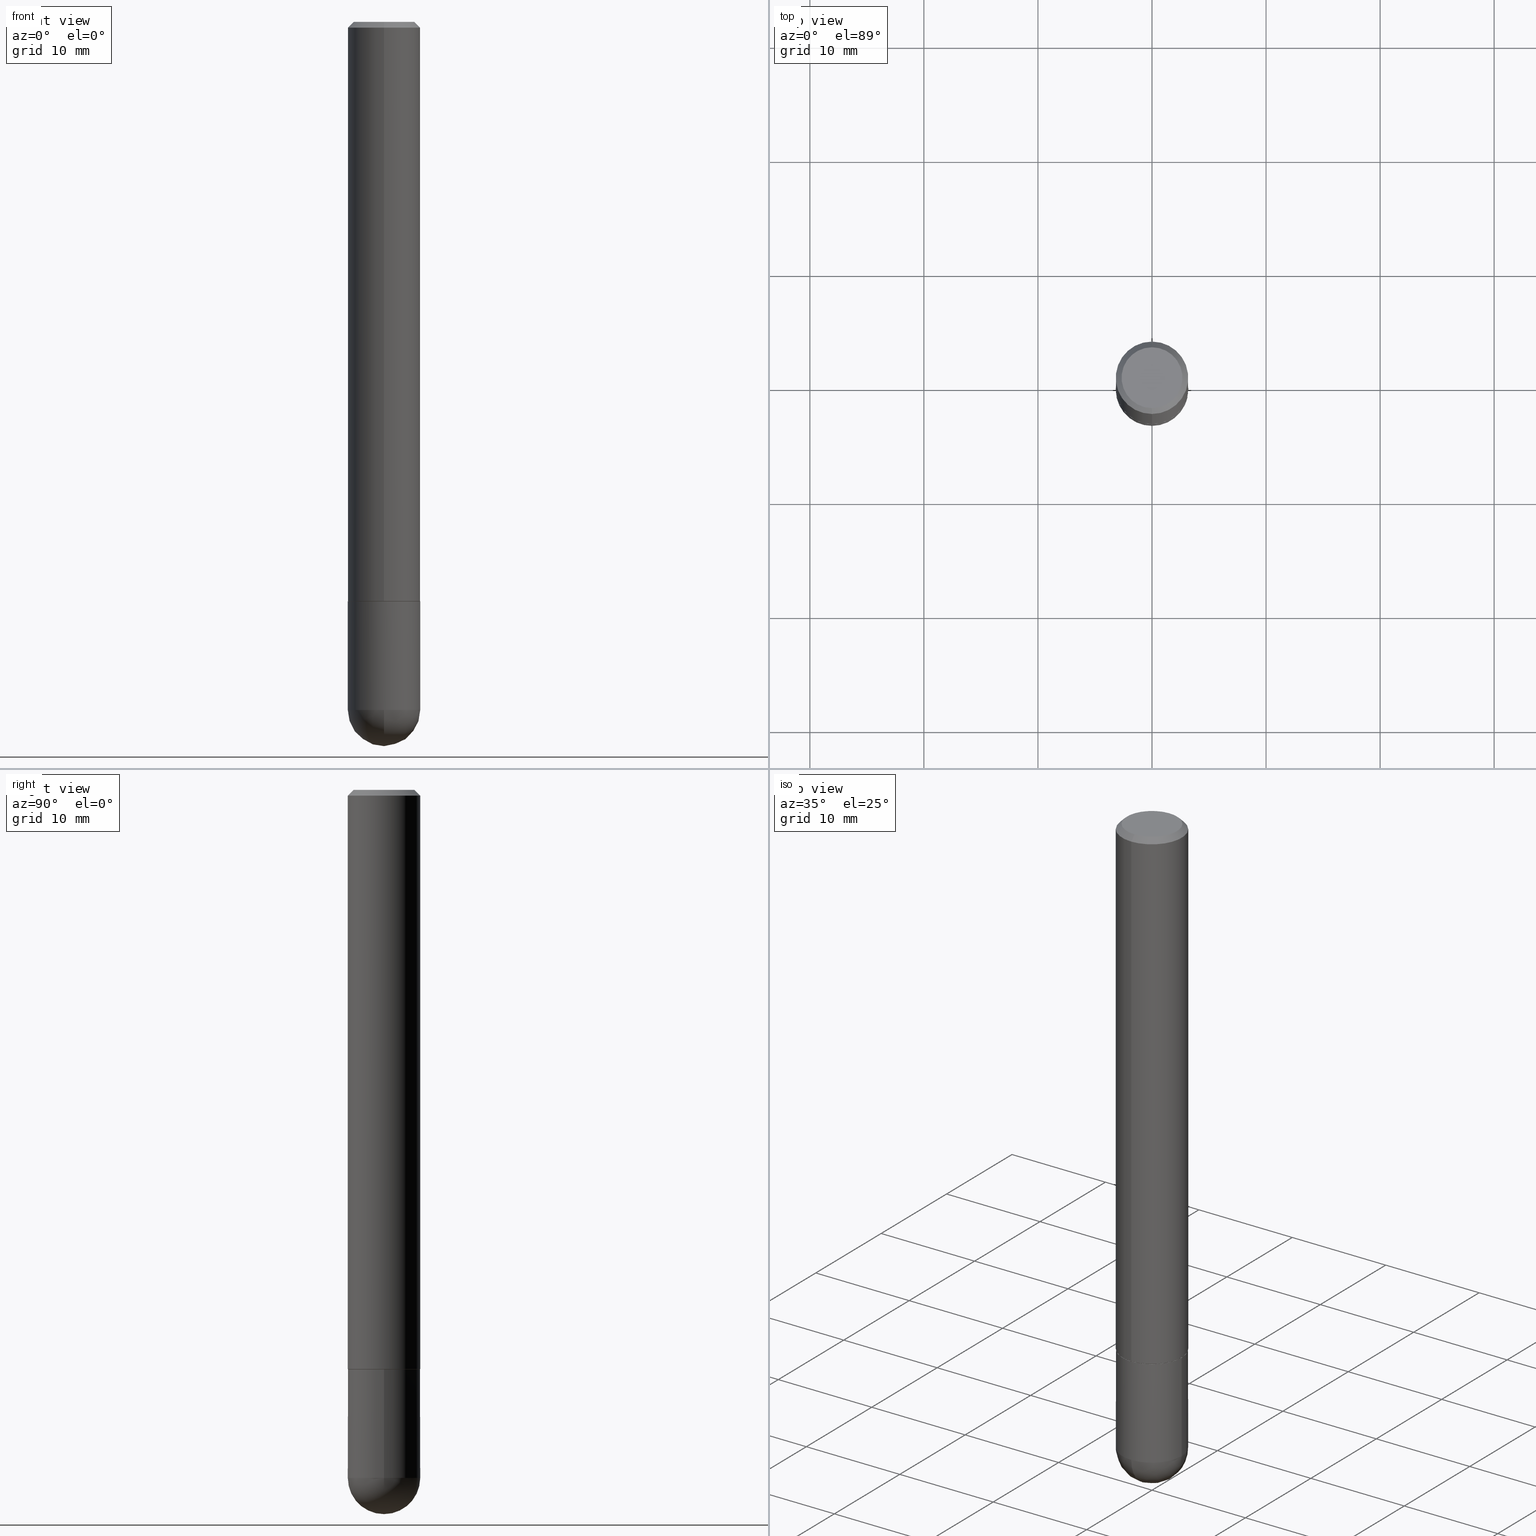
[diagram: canonical four-view strip — front | top / right | iso, engineering-drawing reading convention]
A machine part, canonical four-view strip (front | top / right | iso — engineering-drawing reading convention). The complete STEP part file that produces these views, byte-faithful:
ISO-10303-21;
HEADER;
FILE_DESCRIPTION (( 'STEP AP203' ),
    '1' );
FILE_NAME ('36344.STEP',
    '2024-02-21T18:51:30',
    ( '' ),
    ( '' ),
    'SwSTEP 2.0',
    'SolidWorks 2023',
    '' );
FILE_SCHEMA (( 'CONFIG_CONTROL_DESIGN' ));
ENDSEC;

DATA;
#1 = ORIENTED_EDGE ( 'NONE', *, *, #232, .T. ) ;
#2 = PERSON_AND_ORGANIZATION ( #333, #257 ) ;
#3 = CONICAL_SURFACE ( 'NONE', #265, 0.1250000000000000278, 0.7853981633974469467 ) ;
#4 = EDGE_LOOP ( 'NONE', ( #338, #387, #126, #192 ) ) ;
#5 = ORIENTED_EDGE ( 'NONE', *, *, #272, .T. ) ;
#6 = CARTESIAN_POINT ( 'NONE',  ( 4.891806665152773460E-29, -6.974724612781594373E-15, -1.998999999999999666 ) ) ;
#7 = ORIENTED_EDGE ( 'NONE', *, *, #237, .F. ) ;
#8 = ADVANCED_FACE ( 'NONE', ( #401 ), #111, .F. ) ;
#9 = DIRECTION ( 'NONE',  ( -6.982962677686265922E-15, -1.000000000000000000, 3.489106859820707875E-15 ) ) ;
#10 = ORIENTED_EDGE ( 'NONE', *, *, #67, .T. ) ;
#11 = DIRECTION ( 'NONE',  ( -6.982962677686265922E-15, -1.000000000000000000, 3.489106859820707875E-15 ) ) ;
#12 = CIRCLE ( 'NONE', #96, 0.1250000000000000278 ) ;
#13 = AXIS2_PLACEMENT_3D ( 'NONE', #122, #197, #99 ) ;
#14 = FACE_OUTER_BOUND ( 'NONE', #263, .T. ) ;
#15 = EDGE_CURVE ( 'NONE', #322, #319, #78, .T. ) ;
#16 = CARTESIAN_POINT ( 'NONE',  ( 4.894253792048817813E-31, -6.978213719641443063E-17, -0.02000000000000007674 ) ) ;
#17 = ORIENTED_EDGE ( 'NONE', *, *, #316, .T. ) ;
#18 = DIRECTION ( 'NONE',  ( 6.982962677686265922E-15, 1.000000000000000000, -3.483106191921934765E-15 ) ) ;
#19 = COORDINATED_UNIVERSAL_TIME_OFFSET ( 5, 0, .BEHIND. ) ;
#20 = DIRECTION ( 'NONE',  ( -2.447126896024399518E-29, 3.489106859820708269E-15, 1.000000000000000000 ) ) ;
#21 = AXIS2_PLACEMENT_3D ( 'NONE', #240, #370, #179 ) ;
#22 = EDGE_CURVE ( 'NONE', #290, #319, #195, .T. ) ;
#23 = DIRECTION ( 'NONE',  ( 6.982962677686265922E-15, 1.000000000000000000, -4.370956789862814050E-15 ) ) ;
#24 = DIRECTION ( 'NONE',  ( 2.447126896024399238E-29, -3.489106859820708269E-15, -1.000000000000000000 ) ) ;
#25 = PERSON_AND_ORGANIZATION ( #333, #257 ) ;
#26 = LINE ( 'NONE', #270, #138 ) ;
#27 = DIRECTION ( 'NONE',  ( 6.982962677686265922E-15, 1.000000000000000000, -3.489106859820708269E-15 ) ) ;
#28 = APPROVAL ( #114, 'UNSPECIFIED' ) ;
#29 = CIRCLE ( 'NONE', #328, 0.1250000000000000278 ) ;
#30 = DATE_AND_TIME ( #314, #409 ) ;
#31 = ORIENTED_EDGE ( 'NONE', *, *, #15, .F. ) ;
#32 = MANIFOLD_SOLID_BREP ( 'Body-Move/Copy2[1]', #105 ) ;
#33 = EDGE_CURVE ( 'NONE', #38, #330, #91, .T. ) ;
#34 = CARTESIAN_POINT ( 'NONE',  ( -8.728703347107842263E-16, -0.1250000000000001388, 4.361383574775889774E-16 ) ) ;
#35 = EDGE_LOOP ( 'NONE', ( #101, #363, #170, #354 ) ) ;
#36 = ORIENTED_EDGE ( 'NONE', *, *, #58, .F. ) ;
#37 = CARTESIAN_POINT ( 'NONE',  ( 4.890937612370273194E-29, -6.982962677686291165E-15, -2.000000000000000000 ) ) ;
#38 = VERTEX_POINT ( 'NONE', #163 ) ;
#39 = DIRECTION ( 'NONE',  ( -6.982962677686265133E-15, -1.000000000000000000, 4.370956789862812472E-15 ) ) ;
#40 = ORIENTED_EDGE ( 'NONE', *, *, #140, .F. ) ;
#41 = CARTESIAN_POINT ( 'NONE',  ( 8.030407079339233933E-16, 0.1050000000000007178, -1.079447126425301600E-15 ) ) ;
#42 = DIRECTION ( 'NONE',  ( 1.000000000000000000, -6.982962677686269077E-15, 0.000000000000000000 ) ) ;
#43 = CARTESIAN_POINT ( 'NONE',  ( 4.894253792048799036E-29, -6.978213719641415749E-15, -2.000000000000000000 ) ) ;
#44 = AXIS2_PLACEMENT_3D ( 'NONE', #108, #69, #11 ) ;
#45 = AXIS2_PLACEMENT_3D ( 'NONE', #66, #172, #199 ) ;
#46 = DIRECTION ( 'NONE',  ( 0.000000000000000000, 0.000000000000000000, 1.000000000000000000 ) ) ;
#47 = EDGE_LOOP ( 'NONE', ( #233, #397 ) ) ;
#48 = MECHANICAL_CONTEXT ( 'NONE', #323, 'mechanical' ) ;
#49 = DIRECTION ( 'NONE',  ( 4.937700262164540942E-15, 0.7071067811865441310, -0.7071067811865509034 ) ) ;
#50 = CARTESIAN_POINT ( 'NONE',  ( 8.881784197001260212E-16, 0.1250000000000001388, -4.361383574775889774E-16 ) ) ;
#51 = ADVANCED_FACE ( 'NONE', ( #93 ), #128, .F. ) ;
#52 =( NAMED_UNIT ( * ) SI_UNIT ( $, .STERADIAN. ) SOLID_ANGLE_UNIT ( ) );
#53 = VECTOR ( 'NONE', #49, 39.37007874015748143 ) ;
#54 = AXIS2_PLACEMENT_3D ( 'NONE', #271, #81, #349 ) ;
#55 = DIRECTION ( 'NONE',  ( -6.982962677686265922E-15, -1.000000000000000000, 4.406206441393971762E-15 ) ) ;
#56 = CARTESIAN_POINT ( 'NONE',  ( -0.1250000000000000278, 8.881784197001254296E-16, -6.148668862818634329E-30 ) ) ;
#57 = LINE ( 'NONE', #56, #334 ) ;
#58 = EDGE_CURVE ( 'NONE', #235, #322, #280, .T. ) ;
#59 = AXIS2_PLACEMENT_3D ( 'NONE', #357, #352, #166 ) ;
#60 = APPROVAL ( #187, 'UNSPECIFIED' ) ;
#61 = VERTEX_POINT ( 'NONE', #222 ) ;
#62 = DESIGN_CONTEXT ( 'detailed design', #398, 'design' ) ;
#63 = LOCAL_TIME ( 13, 51, 30.00000000000000000, #412 ) ;
#64 = CONICAL_SURFACE ( 'NONE', #300, 0.1240000000000000269, 0.7853981633973801113 ) ;
#65 = EDGE_LOOP ( 'NONE', ( #36, #360, #318, #31 ) ) ;
#66 = CARTESIAN_POINT ( 'NONE',  ( 1.745023935735698202E-44, -2.488050372303230009E-30, -7.130909061441245634E-16 ) ) ;
#67 = EDGE_CURVE ( 'NONE', #38, #290, #220, .T. ) ;
#68 = ORIENTED_EDGE ( 'NONE', *, *, #336, .T. ) ;
#69 = DIRECTION ( 'NONE',  ( -2.447126896024399518E-29, 3.489106859820708269E-15, 1.000000000000000000 ) ) ;
#70 = VERTEX_POINT ( 'NONE', #109 ) ;
#71 = CARTESIAN_POINT ( 'NONE',  ( 0.000000000000000000, 0.000000000000000000, 0.000000000000000000 ) ) ;
#72 = EDGE_LOOP ( 'NONE', ( #7, #325, #327, #353, #94 ) ) ;
#73 = CIRCLE ( 'NONE', #275, 0.1250000000000001943 ) ;
#74 = DIRECTION ( 'NONE',  ( -1.000000000000000000, 6.982962677686265922E-15, -4.883557194083112340E-29 ) ) ;
#75 = CARTESIAN_POINT ( 'NONE',  ( 0.000000000000000000, 0.000000000000000000, 0.000000000000000000 ) ) ;
#76 = APPROVAL_PERSON_ORGANIZATION ( #404, #60, #247 ) ;
#77 = DIRECTION ( 'NONE',  ( -2.447126896024399518E-29, 3.489106859820708269E-15, 1.000000000000000000 ) ) ;
#78 = LINE ( 'NONE', #211, #53 ) ;
#79 = CARTESIAN_POINT ( 'NONE',  ( 4.894253792048799036E-29, -6.978213719641415749E-15, -2.000000000000000000 ) ) ;
#80 = DIRECTION ( 'NONE',  ( -2.445468806185136597E-29, 3.491481338843145583E-15, 1.000000000000000000 ) ) ;
#81 = DIRECTION ( 'NONE',  ( 1.000000000000000000, -6.982962677686265922E-15, 4.883557194083112340E-29 ) ) ;
#82 = AXIS2_PLACEMENT_3D ( 'NONE', #236, #332, #42 ) ;
#83 = VERTEX_POINT ( 'NONE', #89 ) ;
#84 = VECTOR ( 'NONE', #243, 39.37007874015748143 ) ;
#85 = VECTOR ( 'NONE', #262, 39.37007874015748143 ) ;
#86 = CARTESIAN_POINT ( 'NONE',  ( 5.807988414689698296E-29, -8.292268179752468540E-15, -2.374999999999999556 ) ) ;
#87 = ADVANCED_FACE ( 'NONE', ( #241 ), #3, .T. ) ;
#88 = PERSON_AND_ORGANIZATION_ROLE ( 'creator' ) ;
#89 = CARTESIAN_POINT ( 'NONE',  ( 8.846257060213748209E-16, 0.1239999999999930463, -2.000000000000000444 ) ) ;
#90 = APPROVAL_DATE_TIME ( #384, #28 ) ;
#91 = CIRCLE ( 'NONE', #13, 0.1250000000000002498 ) ;
#92 = COORDINATED_UNIVERSAL_TIME_OFFSET ( 5, 0, .BEHIND. ) ;
#93 = FACE_OUTER_BOUND ( 'NONE', #204, .T. ) ;
#94 = ORIENTED_EDGE ( 'NONE', *, *, #331, .F. ) ;
#95 = ORIENTED_EDGE ( 'NONE', *, *, #316, .F. ) ;
#96 = AXIS2_PLACEMENT_3D ( 'NONE', #16, #77, #376 ) ;
#97 = CC_DESIGN_PERSON_AND_ORGANIZATION_ASSIGNMENT ( #150, #178, ( #136 ) ) ;
#98 = CIRCLE ( 'NONE', #153, 0.1240000000000000269 ) ;
#99 = DIRECTION ( 'NONE',  ( -6.982962677686265133E-15, -1.000000000000000000, 4.370956789862812472E-15 ) ) ;
#100 = LINE ( 'NONE', #238, #85 ) ;
#101 = ORIENTED_EDGE ( 'NONE', *, *, #33, .T. ) ;
#102 = FACE_OUTER_BOUND ( 'NONE', #217, .T. ) ;
#103 = ORIENTED_EDGE ( 'NONE', *, *, #33, .F. ) ;
#104 = CARTESIAN_POINT ( 'NONE',  ( 4.890937612370273194E-29, -6.982962677686291165E-15, -2.000000000000000000 ) ) ;
#105 = CLOSED_SHELL ( 'NONE', ( #268, #364, #396, #51, #171 ) ) ;
#106 = LOCAL_TIME ( 13, 51, 30.00000000000000000, #176 ) ;
#107 = CC_DESIGN_PERSON_AND_ORGANIZATION_ASSIGNMENT ( #379, #88, ( #210 ) ) ;
#108 = CARTESIAN_POINT ( 'NONE',  ( 0.000000000000000000, 0.000000000000000000, 0.000000000000000000 ) ) ;
#109 = CARTESIAN_POINT ( 'NONE',  ( -8.881784197000695190E-16, -0.1250000000000086320, -2.374999999999999112 ) ) ;
#110 = APPROVAL ( #317, 'UNSPECIFIED' ) ;
#111 = PLANE ( 'NONE',  #21 ) ;
#112 = CONICAL_SURFACE ( 'NONE', #389, 0.1240000000000000269, 0.7853981633973801113 ) ;
#113 = VECTOR ( 'NONE', #212, 39.37007874015748143 ) ;
#114 = APPROVAL_STATUS ( 'not_yet_approved' ) ;
#115 = CARTESIAN_POINT ( 'NONE',  ( 8.810729923425732322E-16, 0.1239999999999930463, -2.000000000000000444 ) ) ;
#116 = CALENDAR_DATE ( 2024, 21, 2 ) ;
#117 = DIRECTION ( 'NONE',  ( -2.447126896024399518E-29, 3.489106859820708269E-15, 1.000000000000000000 ) ) ;
#118 = EDGE_CURVE ( 'NONE', #202, #255, #251, .T. ) ;
#119 = DATE_AND_TIME ( #116, #175 ) ;
#120 = CARTESIAN_POINT ( 'NONE',  ( 0.000000000000000000, 0.000000000000000000, 0.000000000000000000 ) ) ;
#121 = EDGE_CURVE ( 'NONE', #330, #319, #180, .T. ) ;
#122 = CARTESIAN_POINT ( 'NONE',  ( 4.891806665152773460E-29, -6.974724612781594373E-15, -1.998999999999999666 ) ) ;
#123 = PRODUCT_DEFINITION_SHAPE ( 'NONE', 'NONE',  #136 ) ;
#124 = APPROVAL_ROLE ( '' ) ;
#125 = AXIS2_PLACEMENT_3D ( 'NONE', #395, #400, #137 ) ;
#126 = ORIENTED_EDGE ( 'NONE', *, *, #15, .T. ) ;
#127 = EDGE_LOOP ( 'NONE', ( #254, #358, #40, #198 ) ) ;
#128 = PLANE ( 'NONE',  #341 ) ;
#129 = ORIENTED_EDGE ( 'NONE', *, *, #383, .F. ) ;
#130 = CC_DESIGN_DATE_AND_TIME_ASSIGNMENT ( #30, #155, ( #250 ) ) ;
#131 = DIRECTION ( 'NONE',  ( -2.445468806185136597E-29, 3.491481338843145583E-15, 1.000000000000000000 ) ) ;
#132 = AXIS2_PLACEMENT_3D ( 'NONE', #120, #80, #340 ) ;
#133 = VERTEX_POINT ( 'NONE', #373 ) ;
#134 = ORIENTED_EDGE ( 'NONE', *, *, #140, .T. ) ;
#135 = CARTESIAN_POINT ( 'NONE',  ( 5.476868636775814291E-29, -8.766450547892521992E-15, -2.375000000000000000 ) ) ;
#136 = PRODUCT_DEFINITION ( 'UNKNOWN', '', #210, #62 ) ;
#137 = DIRECTION ( 'NONE',  ( 1.000000000000000000, -6.982962677686269077E-15, 0.000000000000000000 ) ) ;
#138 = VECTOR ( 'NONE', #245, 39.37007874015748143 ) ;
#139 = CARTESIAN_POINT ( 'NONE',  ( 5.787897026856327965E-29, -9.195231672753244292E-15, -2.500000000000000444 ) ) ;
#140 = EDGE_CURVE ( 'NONE', #202, #390, #253, .T. ) ;
#141 = DIRECTION ( 'NONE',  ( -2.447126896024399518E-29, 3.489106859820708269E-15, 1.000000000000000000 ) ) ;
#142 = DIRECTION ( 'NONE',  ( -2.447126896024399518E-29, 3.489106859820708269E-15, 1.000000000000000000 ) ) ;
#143 = DIRECTION ( 'NONE',  ( 6.982962677686265922E-15, 1.000000000000000000, -3.483106191921934765E-15 ) ) ;
#144 = CARTESIAN_POINT ( 'NONE',  ( 4.894253792048799036E-29, -6.978213719641415749E-15, -2.000000000000000000 ) ) ;
#145 = DIRECTION ( 'NONE',  ( -2.447126896024399518E-29, 3.489106859820708269E-15, 1.000000000000000000 ) ) ;
#146 = CIRCLE ( 'NONE', #365, 0.1250000000000000278 ) ;
#147 = FACE_OUTER_BOUND ( 'NONE', #157, .T. ) ;
#148 = APPLICATION_PROTOCOL_DEFINITION ( 'international standard', 'config_control_design', 1994, #398 ) ;
#149 = DIRECTION ( 'NONE',  ( -2.445468806185136597E-29, 3.491481338843145583E-15, 1.000000000000000000 ) ) ;
#150 = PERSON_AND_ORGANIZATION ( #333, #257 ) ;
#151 = CARTESIAN_POINT ( 'NONE',  ( 4.894253792048799036E-29, -6.978213719641415749E-15, -2.000000000000000000 ) ) ;
#152 = CIRCLE ( 'NONE', #82, 0.1250000000000000278 ) ;
#153 = AXIS2_PLACEMENT_3D ( 'NONE', #43, #201, #326 ) ;
#154 = DIMENSIONAL_EXPONENTS ( 1.000000000000000000, 0.000000000000000000, 0.000000000000000000, 0.000000000000000000, 0.000000000000000000, 0.000000000000000000, 0.000000000000000000 ) ;
#155 = DATE_TIME_ROLE ( 'classification_date' ) ;
#156 = DIRECTION ( 'NONE',  ( -6.982962677686265922E-15, -1.000000000000000000, 3.483106191921934765E-15 ) ) ;
#157 = EDGE_LOOP ( 'NONE', ( #230, #193, #68, #177 ) ) ;
#158 = AXIS2_PLACEMENT_3D ( 'NONE', #306, #142, #156 ) ;
#159 = AXIS2_PLACEMENT_3D ( 'NONE', #406, #46, #242 ) ;
#160 = DIRECTION ( 'NONE',  ( -2.447126896024399518E-29, 3.489106859820708269E-15, 1.000000000000000000 ) ) ;
#161 = ORIENTED_EDGE ( 'NONE', *, *, #331, .T. ) ;
#162 = CALENDAR_DATE ( 2024, 21, 2 ) ;
#163 = CARTESIAN_POINT ( 'NONE',  ( -8.728703347107360072E-16, -0.1250000000000072164, -1.998999999999999000 ) ) ;
#164 = EDGE_CURVE ( 'NONE', #291, #390, #216, .T. ) ;
#165 = ORIENTED_EDGE ( 'NONE', *, *, #118, .F. ) ;
#166 = DIRECTION ( 'NONE',  ( -6.982962677686266711E-15, -1.000000000000000000, 3.489106859820709058E-15 ) ) ;
#167 = ORIENTED_EDGE ( 'NONE', *, *, #203, .T. ) ;
#168 = MANIFOLD_SOLID_BREP ( 'Body-Move/Copy2[2]', #385 ) ;
#169 = DIRECTION ( 'NONE',  ( 1.000000000000000000, -6.982962677686269077E-15, 0.000000000000000000 ) ) ;
#170 = ORIENTED_EDGE ( 'NONE', *, *, #22, .F. ) ;
#171 = ADVANCED_FACE ( 'NONE', ( #307 ), #312, .T. ) ;
#172 = DIRECTION ( 'NONE',  ( -2.447126896024399518E-29, 3.489106859820708269E-15, 1.000000000000000000 ) ) ;
#173 = DIRECTION ( 'NONE',  ( 1.000000000000000000, -6.982962677686269077E-15, 0.000000000000000000 ) ) ;
#174 = AXIS2_PLACEMENT_3D ( 'NONE', #408, #380, #143 ) ;
#175 = LOCAL_TIME ( 13, 51, 30.00000000000000000, #19 ) ;
#176 = COORDINATED_UNIVERSAL_TIME_OFFSET ( 5, 0, .BEHIND. ) ;
#177 = ORIENTED_EDGE ( 'NONE', *, *, #305, .F. ) ;
#178 = PERSON_AND_ORGANIZATION_ROLE ( 'creator' ) ;
#179 = DIRECTION ( 'NONE',  ( -6.982962677686265922E-15, -1.000000000000000000, 3.489106859820708269E-15 ) ) ;
#180 = LINE ( 'NONE', #50, #249 ) ;
#181 = UNCERTAINTY_MEASURE_WITH_UNIT (LENGTH_MEASURE( 1.000000000000000082E-05 ), #215, 'distance_accuracy_value', 'NONE');
#182 = FACE_OUTER_BOUND ( 'NONE', #127, .T. ) ;
#183 = CARTESIAN_POINT ( 'NONE',  ( 0.1250000000000000278, -8.728703347107836346E-16, 6.095220969744921142E-30 ) ) ;
#184 = AXIS2_PLACEMENT_3D ( 'NONE', #104, #231, #169 ) ;
#185 = SPHERICAL_SURFACE ( 'NONE', #301, 0.1250000000000001943 ) ;
#186 = CARTESIAN_POINT ( 'NONE',  ( 5.476868636775814291E-29, -8.766450547892521992E-15, -2.375000000000000000 ) ) ;
#187 = APPROVAL_STATUS ( 'not_yet_approved' ) ;
#188 = CARTESIAN_POINT ( 'NONE',  ( 0.1250000000000000278, -7.855833012397075293E-15, -2.000000000000000000 ) ) ;
#189 = SECURITY_CLASSIFICATION_LEVEL ( 'unclassified' ) ;
#190 = ADVANCED_FACE ( 'NONE', ( #248 ), #339, .F. ) ;
#191 = PRODUCT ( '36344', '36344', '', ( #48 ) ) ;
#192 = ORIENTED_EDGE ( 'NONE', *, *, #383, .T. ) ;
#193 = ORIENTED_EDGE ( 'NONE', *, *, #244, .T. ) ;
#194 = CC_DESIGN_SECURITY_CLASSIFICATION ( #250, ( #210 ) ) ;
#195 = CIRCLE ( 'NONE', #158, 0.1250000000000000278 ) ;
#196 = ADVANCED_FACE ( 'NONE', ( #147 ), #64, .T. ) ;
#197 = DIRECTION ( 'NONE',  ( -2.447126896024399518E-29, 3.489106859820708269E-15, 1.000000000000000000 ) ) ;
#198 = ORIENTED_EDGE ( 'NONE', *, *, #374, .F. ) ;
#199 = DIRECTION ( 'NONE',  ( -6.982962677686266711E-15, -1.000000000000000000, 3.489106859820709058E-15 ) ) ;
#200 = VERTEX_POINT ( 'NONE', #274 ) ;
#201 = DIRECTION ( 'NONE',  ( -2.447126896024399518E-29, 3.489106859820708269E-15, 1.000000000000000000 ) ) ;
#202 = VERTEX_POINT ( 'NONE', #402 ) ;
#203 = EDGE_CURVE ( 'NONE', #83, #330, #218, .T. ) ;
#204 = EDGE_LOOP ( 'NONE', ( #5, #161 ) ) ;
#205 = DIRECTION ( 'NONE',  ( 6.982962677686265922E-15, 1.000000000000000000, -4.370956789862814050E-15 ) ) ;
#206 = DIRECTION ( 'NONE',  ( -2.445468806185136597E-29, 3.491481338843145583E-15, 1.000000000000000000 ) ) ;
#207 = LOCAL_TIME ( 13, 51, 30.00000000000000000, #92 ) ;
#208 = PERSON_AND_ORGANIZATION ( #333, #257 ) ;
#209 = CIRCLE ( 'NONE', #125, 0.1250000000000000278 ) ;
#210 = PRODUCT_DEFINITION_FORMATION_WITH_SPECIFIED_SOURCE ( 'ANY', '', #191, .NOT_KNOWN. ) ;
#211 = CARTESIAN_POINT ( 'NONE',  ( 8.728703347107839305E-16, 0.1249999999999999584, -0.02000000000000051389 ) ) ;
#212 = DIRECTION ( 'NONE',  ( -2.445468806185136877E-29, 3.491481338843145188E-15, 1.000000000000000000 ) ) ;
#213 = DIRECTION ( 'NONE',  ( -6.982962677686265922E-15, -1.000000000000000000, 4.406206441393971762E-15 ) ) ;
#214 = CC_DESIGN_PERSON_AND_ORGANIZATION_ASSIGNMENT ( #25, #276, ( #191 ) ) ;
#215 =( CONVERSION_BASED_UNIT ( 'INCH', #337 ) LENGTH_UNIT ( ) NAMED_UNIT ( #154 ) );
#216 = CIRCLE ( 'NONE', #54, 0.1250000000000001943 ) ;
#217 = EDGE_LOOP ( 'NONE', ( #394, #1, #285, #95 ) ) ;
#218 = LINE ( 'NONE', #115, #84 ) ;
#219 = DIRECTION ( 'NONE',  ( 2.447126896024399518E-29, -3.489106859820708269E-15, -1.000000000000000000 ) ) ;
#220 = LINE ( 'NONE', #34, #399 ) ;
#221 = FACE_OUTER_BOUND ( 'NONE', #256, .T. ) ;
#222 = CARTESIAN_POINT ( 'NONE',  ( -0.1250000000000000278, -6.749437009019255015E-15, -2.000000000000000000 ) ) ;
#223 = CALENDAR_DATE ( 2024, 21, 2 ) ;
#224 = DIRECTION ( 'NONE',  ( -1.000000000000000000, 6.982962677686265922E-15, -4.876176775795935793E-29 ) ) ;
#225 = EDGE_LOOP ( 'NONE', ( #226, #167, #103, #261 ) ) ;
#226 = ORIENTED_EDGE ( 'NONE', *, *, #287, .T. ) ;
#227 = AXIS2_PLACEMENT_3D ( 'NONE', #75, #206, #296 ) ;
#228 = CC_DESIGN_APPROVAL ( #60, ( #136 ) ) ;
#229 = DIRECTION ( 'NONE',  ( 2.438088387897960049E-29, -3.491481338843145188E-15, -1.000000000000000000 ) ) ;
#230 = ORIENTED_EDGE ( 'NONE', *, *, #203, .F. ) ;
#231 = DIRECTION ( 'NONE',  ( -2.445468806185136597E-29, 3.491481338843145583E-15, 1.000000000000000000 ) ) ;
#232 = EDGE_CURVE ( 'NONE', #291, #70, #73, .T. ) ;
#233 = ORIENTED_EDGE ( 'NONE', *, *, #287, .F. ) ;
#234 = CYLINDRICAL_SURFACE ( 'NONE', #227, 0.1250000000000000278 ) ;
#235 = VERTEX_POINT ( 'NONE', #347 ) ;
#236 = CARTESIAN_POINT ( 'NONE',  ( 5.807988414689698296E-29, -8.292268179752468540E-15, -2.374999999999999556 ) ) ;
#237 = EDGE_CURVE ( 'NONE', #200, #61, #57, .T. ) ;
#238 = CARTESIAN_POINT ( 'NONE',  ( -8.658873720330482180E-16, -0.1240000000000070074, -1.999999999999999334 ) ) ;
#239 = CALENDAR_DATE ( 2024, 21, 2 ) ;
#240 = CARTESIAN_POINT ( 'NONE',  ( 4.894253792048799036E-29, -6.978213719641415749E-15, -2.000000000000000000 ) ) ;
#241 = FACE_OUTER_BOUND ( 'NONE', #4, .T. ) ;
#242 = DIRECTION ( 'NONE',  ( 1.000000000000000000, 0.000000000000000000, 0.000000000000000000 ) ) ;
#243 = DIRECTION ( 'NONE',  ( 5.024295867787719235E-15, 0.7071067811865017205, 0.7071067811865933139 ) ) ;
#244 = EDGE_CURVE ( 'NONE', #83, #133, #288, .T. ) ;
#245 = DIRECTION ( 'NONE',  ( -4.851104656540957175E-15, -0.7071067811865490160, -0.7071067811865460184 ) ) ;
#246 = CARTESIAN_POINT ( 'NONE',  ( 4.894253792048817813E-31, -6.978213719641443063E-17, -0.02000000000000007674 ) ) ;
#247 = APPROVAL_ROLE ( '' ) ;
#248 = FACE_OUTER_BOUND ( 'NONE', #386, .T. ) ;
#249 = VECTOR ( 'NONE', #20, 39.37007874015748143 ) ;
#250 = SECURITY_CLASSIFICATION ( '', '', #189 ) ;
#251 = LINE ( 'NONE', #183, #113 ) ;
#252 = ORIENTED_EDGE ( 'NONE', *, *, #121, .F. ) ;
#253 = CIRCLE ( 'NONE', #350, 0.1250000000000000278 ) ;
#254 = ORIENTED_EDGE ( 'NONE', *, *, #232, .F. ) ;
#255 = VERTEX_POINT ( 'NONE', #188 ) ;
#256 = EDGE_LOOP ( 'NONE', ( #17, #293, #303, #165, #134 ) ) ;
#257 = ORGANIZATION ( 'UNSPECIFIED', 'UNSPECIFIED', '' ) ;
#258 = CIRCLE ( 'NONE', #184, 0.1250000000000000278 ) ;
#259 = ADVANCED_FACE ( 'NONE', ( #279 ), #368, .T. ) ;
#260 = CARTESIAN_POINT ( 'NONE',  ( 5.807988414689698296E-29, -8.292268179752468540E-15, -2.374999999999999556 ) ) ;
#261 = ORIENTED_EDGE ( 'NONE', *, *, #336, .F. ) ;
#262 = DIRECTION ( 'NONE',  ( -4.937700262164211199E-15, -0.7071067811864968355, 0.7071067811865981989 ) ) ;
#263 = EDGE_LOOP ( 'NONE', ( #252, #281, #10, #129 ) ) ;
#264 = APPROVAL_DATE_TIME ( #361, #110 ) ;
#265 = AXIS2_PLACEMENT_3D ( 'NONE', #246, #219, #18 ) ;
#266 = FACE_OUTER_BOUND ( 'NONE', #35, .T. ) ;
#267 = CIRCLE ( 'NONE', #45, 0.1050000000000007178 ) ;
#268 = ADVANCED_FACE ( 'NONE', ( #221 ), #234, .T. ) ;
#269 = DIRECTION ( 'NONE',  ( -2.447126896024399518E-29, 3.489106859820708269E-15, 1.000000000000000000 ) ) ;
#270 = CARTESIAN_POINT ( 'NONE',  ( -8.575622497214411495E-16, -0.1250000000000001110, -0.01999999999999964306 ) ) ;
#271 = CARTESIAN_POINT ( 'NONE',  ( 5.476868636775814291E-29, -8.766450547892521992E-15, -2.375000000000000000 ) ) ;
#272 = EDGE_CURVE ( 'NONE', #255, #61, #29, .T. ) ;
#273 = CARTESIAN_POINT ( 'NONE',  ( 5.476868636775814291E-29, -8.766450547892521992E-15, -2.375000000000000000 ) ) ;
#274 = CARTESIAN_POINT ( 'NONE',  ( -0.1250000000000000278, -6.749437009019255804E-15, -2.374999999999999556 ) ) ;
#275 = AXIS2_PLACEMENT_3D ( 'NONE', #186, #310, #277 ) ;
#276 = PERSON_AND_ORGANIZATION_ROLE ( 'design_owner' ) ;
#277 = DIRECTION ( 'NONE',  ( -7.105427357601001859E-15, -1.000000000000000000, 0.000000000000000000 ) ) ;
#278 =( NAMED_UNIT ( * ) PLANE_ANGLE_UNIT ( ) SI_UNIT ( $, .RADIAN. ) );
#279 = FACE_OUTER_BOUND ( 'NONE', #65, .T. ) ;
#280 = CIRCLE ( 'NONE', #59, 0.1050000000000007178 ) ;
#281 = ORIENTED_EDGE ( 'NONE', *, *, #305, .T. ) ;
#282 = CC_DESIGN_APPROVAL ( #110, ( #250 ) ) ;
#283 = ADVANCED_FACE ( 'NONE', ( #14 ), #359, .T. ) ;
#284 = PERSON_AND_ORGANIZATION_ROLE ( 'design_supplier' ) ;
#285 = ORIENTED_EDGE ( 'NONE', *, *, #313, .F. ) ;
#286 = PERSON_AND_ORGANIZATION_ROLE ( 'classification_officer' ) ;
#287 = EDGE_CURVE ( 'NONE', #133, #83, #98, .T. ) ;
#288 = CIRCLE ( 'NONE', #320, 0.1240000000000000269 ) ;
#289 = AXIS2_PLACEMENT_3D ( 'NONE', #71, #393, #9 ) ;
#290 = VERTEX_POINT ( 'NONE', #292 ) ;
#291 = VERTEX_POINT ( 'NONE', #139 ) ;
#292 = CARTESIAN_POINT ( 'NONE',  ( -8.575622497214411495E-16, -0.1250000000000001110, -0.01999999999999964306 ) ) ;
#293 = ORIENTED_EDGE ( 'NONE', *, *, #237, .T. ) ;
#294 = CARTESIAN_POINT ( 'NONE',  ( 8.881784197001510675E-16, 0.1249999999999932693, -1.999000000000000110 ) ) ;
#295 = ORIENTED_EDGE ( 'NONE', *, *, #345, .T. ) ;
#296 = DIRECTION ( 'NONE',  ( 1.000000000000000000, -6.982962677686267499E-15, 4.876176775795935793E-29 ) ) ;
#297 = DIRECTION ( 'NONE',  ( -2.445468806185136597E-29, 3.491481338843145583E-15, 1.000000000000000000 ) ) ;
#298 = CC_DESIGN_PERSON_AND_ORGANIZATION_ASSIGNMENT ( #348, #284, ( #210 ) ) ;
#299 = PRODUCT_RELATED_PRODUCT_CATEGORY ( 'detail', '', ( #191 ) ) ;
#300 = AXIS2_PLACEMENT_3D ( 'NONE', #79, #145, #55 ) ;
#301 = AXIS2_PLACEMENT_3D ( 'NONE', #273, #335, #23 ) ;
#302 = CARTESIAN_POINT ( 'NONE',  ( 8.728703347108405312E-16, 0.1249999999999916039, -2.375000000000000000 ) ) ;
#303 = ORIENTED_EDGE ( 'NONE', *, *, #272, .F. ) ;
#304 = DIRECTION ( 'NONE',  ( 1.000000000000000000, -6.982962677686269077E-15, 0.000000000000000000 ) ) ;
#305 = EDGE_CURVE ( 'NONE', #330, #38, #308, .T. ) ;
#306 = CARTESIAN_POINT ( 'NONE',  ( 4.894253792048817813E-31, -6.978213719641443063E-17, -0.02000000000000007674 ) ) ;
#307 = FACE_OUTER_BOUND ( 'NONE', #72, .T. ) ;
#308 = CIRCLE ( 'NONE', #391, 0.1250000000000002498 ) ;
#309 = APPLICATION_PROTOCOL_DEFINITION ( 'international standard', 'config_control_design', 1994, #323 ) ;
#310 = DIRECTION ( 'NONE',  ( -1.000000000000000000, 7.105427357601001070E-15, -4.926315508542082329E-29 ) ) ;
#311 = DATE_AND_TIME ( #239, #106 ) ;
#312 = CYLINDRICAL_SURFACE ( 'NONE', #132, 0.1250000000000000278 ) ;
#313 = EDGE_CURVE ( 'NONE', #200, #70, #146, .T. ) ;
#314 = CALENDAR_DATE ( 2024, 21, 2 ) ;
#315 = CARTESIAN_POINT ( 'NONE',  ( 8.728703347108323468E-16, 0.1249999999999930472, -2.000000000000000444 ) ) ;
#316 = EDGE_CURVE ( 'NONE', #390, #200, #209, .T. ) ;
#317 = APPROVAL_STATUS ( 'not_yet_approved' ) ;
#318 = ORIENTED_EDGE ( 'NONE', *, *, #22, .T. ) ;
#319 = VERTEX_POINT ( 'NONE', #362 ) ;
#320 = AXIS2_PLACEMENT_3D ( 'NONE', #151, #117, #377 ) ;
#321 = AXIS2_PLACEMENT_3D ( 'NONE', #135, #74, #205 ) ;
#322 = VERTEX_POINT ( 'NONE', #41 ) ;
#323 = APPLICATION_CONTEXT ( 'configuration controlled 3d designs of mechanical parts and assemblies' ) ;
#324 = CYLINDRICAL_SURFACE ( 'NONE', #289, 0.1250000000000001388 ) ;
#325 = ORIENTED_EDGE ( 'NONE', *, *, #313, .T. ) ;
#326 = DIRECTION ( 'NONE',  ( -6.982962677686265922E-15, -1.000000000000000000, 4.406206441393971762E-15 ) ) ;
#327 = ORIENTED_EDGE ( 'NONE', *, *, #374, .T. ) ;
#328 = AXIS2_PLACEMENT_3D ( 'NONE', #37, #297, #173 ) ;
#329 = DIRECTION ( 'NONE',  ( 1.000000000000000000, -6.982962677686269077E-15, 0.000000000000000000 ) ) ;
#330 = VERTEX_POINT ( 'NONE', #294 ) ;
#331 = EDGE_CURVE ( 'NONE', #61, #255, #258, .T. ) ;
#332 = DIRECTION ( 'NONE',  ( -2.445468806185136597E-29, 3.491481338843145583E-15, 1.000000000000000000 ) ) ;
#333 = PERSON ( 'UNSPECIFIED', 'UNSPECIFIED', 'UNSPECIFIED', ('UNSPECIFIED'), ('UNSPECIFIED'), ('UNSPECIFIED') ) ;
#334 = VECTOR ( 'NONE', #407, 39.37007874015748143 ) ;
#335 = DIRECTION ( 'NONE',  ( -1.000000000000000000, 6.982962677686265922E-15, -4.883557194083112340E-29 ) ) ;
#336 = EDGE_CURVE ( 'NONE', #133, #38, #100, .T. ) ;
#337 = LENGTH_MEASURE_WITH_UNIT ( LENGTH_MEASURE( 0.02539999999999999897 ), #369 );
#338 = ORIENTED_EDGE ( 'NONE', *, *, #410, .F. ) ;
#339 = PLANE ( 'NONE',  #355 ) ;
#340 = DIRECTION ( 'NONE',  ( 1.000000000000000000, -6.982962677686267499E-15, 4.876176775795935793E-29 ) ) ;
#341 = AXIS2_PLACEMENT_3D ( 'NONE', #315, #229, #224 ) ;
#342 = CARTESIAN_POINT ( 'NONE',  ( 7.332110811570630533E-16, 0.1050000000000007178, -7.229016733532391211E-16 ) ) ;
#343 = APPROVAL_PERSON_ORGANIZATION ( #2, #110, #124 ) ;
#344 = SHAPE_DEFINITION_REPRESENTATION ( #123, #403 ) ;
#345 = EDGE_CURVE ( 'NONE', #322, #235, #267, .T. ) ;
#346 = APPROVAL_DATE_TIME ( #311, #60 ) ;
#347 = CARTESIAN_POINT ( 'NONE',  ( -7.889572697437284805E-16, -0.1050000000000007178, -3.467346858629476748E-16 ) ) ;
#348 = PERSON_AND_ORGANIZATION ( #333, #257 ) ;
#349 = DIRECTION ( 'NONE',  ( 6.982962677686266711E-15, 1.000000000000000000, 0.000000000000000000 ) ) ;
#350 = AXIS2_PLACEMENT_3D ( 'NONE', #86, #149, #304 ) ;
#351 = ADVANCED_FACE ( 'NONE', ( #266 ), #324, .T. ) ;
#352 = DIRECTION ( 'NONE',  ( -2.447126896024399518E-29, 3.489106859820708269E-15, 1.000000000000000000 ) ) ;
#353 = ORIENTED_EDGE ( 'NONE', *, *, #118, .T. ) ;
#354 = ORIENTED_EDGE ( 'NONE', *, *, #67, .F. ) ;
#355 = AXIS2_PLACEMENT_3D ( 'NONE', #342, #24, #27 ) ;
#356 = CC_DESIGN_PERSON_AND_ORGANIZATION_ASSIGNMENT ( #411, #286, ( #250 ) ) ;
#357 = CARTESIAN_POINT ( 'NONE',  ( 1.745023935735698202E-44, -2.488050372303230009E-30, -7.130909061441245634E-16 ) ) ;
#358 = ORIENTED_EDGE ( 'NONE', *, *, #164, .T. ) ;
#359 = CYLINDRICAL_SURFACE ( 'NONE', #44, 0.1250000000000001388 ) ;
#360 = ORIENTED_EDGE ( 'NONE', *, *, #410, .T. ) ;
#361 = DATE_AND_TIME ( #223, #207 ) ;
#362 = CARTESIAN_POINT ( 'NONE',  ( 8.728703347107839305E-16, 0.1249999999999999584, -0.02000000000000051389 ) ) ;
#363 = ORIENTED_EDGE ( 'NONE', *, *, #121, .T. ) ;
#364 = ADVANCED_FACE ( 'NONE', ( #102 ), #366, .T. ) ;
#365 = AXIS2_PLACEMENT_3D ( 'NONE', #260, #131, #329 ) ;
#366 = SPHERICAL_SURFACE ( 'NONE', #321, 0.1250000000000001943 ) ;
#367 = DATE_TIME_ROLE ( 'creation_date' ) ;
#368 = CONICAL_SURFACE ( 'NONE', #174, 0.1250000000000000278, 0.7853981633974469467 ) ;
#369 =( LENGTH_UNIT ( ) NAMED_UNIT ( * ) SI_UNIT ( $, .METRE. ) );
#370 = DIRECTION ( 'NONE',  ( -2.447126896024399238E-29, 3.489106859820708269E-15, 1.000000000000000000 ) ) ;
#371 = APPROVAL_ROLE ( '' ) ;
#372 = FACE_OUTER_BOUND ( 'NONE', #225, .T. ) ;
#373 = CARTESIAN_POINT ( 'NONE',  ( -8.658873720330482180E-16, -0.1240000000000070074, -1.999999999999999334 ) ) ;
#374 = EDGE_CURVE ( 'NONE', #70, #202, #152, .T. ) ;
#375 = APPROVAL_PERSON_ORGANIZATION ( #208, #28, #371 ) ;
#376 = DIRECTION ( 'NONE',  ( -6.982962677686265922E-15, -1.000000000000000000, 3.483106191921934765E-15 ) ) ;
#377 = DIRECTION ( 'NONE',  ( -6.982962677686265922E-15, -1.000000000000000000, 4.406206441393971762E-15 ) ) ;
#378 = CC_DESIGN_APPROVAL ( #28, ( #210 ) ) ;
#379 = PERSON_AND_ORGANIZATION ( #333, #257 ) ;
#380 = DIRECTION ( 'NONE',  ( 2.447126896024399518E-29, -3.489106859820708269E-15, -1.000000000000000000 ) ) ;
#381 = ORIENTED_EDGE ( 'NONE', *, *, #58, .T. ) ;
#382 = COORDINATED_UNIVERSAL_TIME_OFFSET ( 5, 0, .BEHIND. ) ;
#383 = EDGE_CURVE ( 'NONE', #319, #290, #12, .T. ) ;
#384 = DATE_AND_TIME ( #162, #63 ) ;
#385 = CLOSED_SHELL ( 'NONE', ( #388, #351, #259, #87, #283, #196, #8, #190 ) ) ;
#386 = EDGE_LOOP ( 'NONE', ( #295, #381 ) ) ;
#387 = ORIENTED_EDGE ( 'NONE', *, *, #345, .F. ) ;
#388 = ADVANCED_FACE ( 'NONE', ( #372 ), #112, .T. ) ;
#389 = AXIS2_PLACEMENT_3D ( 'NONE', #144, #141, #213 ) ;
#390 = VERTEX_POINT ( 'NONE', #302 ) ;
#391 = AXIS2_PLACEMENT_3D ( 'NONE', #6, #269, #39 ) ;
#392 =( GEOMETRIC_REPRESENTATION_CONTEXT ( 3 ) GLOBAL_UNCERTAINTY_ASSIGNED_CONTEXT ( ( #181 ) ) GLOBAL_UNIT_ASSIGNED_CONTEXT ( ( #215, #278, #52 ) ) REPRESENTATION_CONTEXT ( 'NONE', 'WORKASPACE' ) );
#393 = DIRECTION ( 'NONE',  ( -2.447126896024399518E-29, 3.489106859820708269E-15, 1.000000000000000000 ) ) ;
#394 = ORIENTED_EDGE ( 'NONE', *, *, #164, .F. ) ;
#395 = CARTESIAN_POINT ( 'NONE',  ( 5.807988414689698296E-29, -8.292268179752468540E-15, -2.374999999999999556 ) ) ;
#396 = ADVANCED_FACE ( 'NONE', ( #182 ), #185, .T. ) ;
#397 = ORIENTED_EDGE ( 'NONE', *, *, #244, .F. ) ;
#398 = APPLICATION_CONTEXT ( 'configuration controlled 3d designs of mechanical parts and assemblies' ) ;
#399 = VECTOR ( 'NONE', #160, 39.37007874015748143 ) ;
#400 = DIRECTION ( 'NONE',  ( -2.445468806185136597E-29, 3.491481338843145583E-15, 1.000000000000000000 ) ) ;
#401 = FACE_OUTER_BOUND ( 'NONE', #47, .T. ) ;
#402 = CARTESIAN_POINT ( 'NONE',  ( 0.1250000000000000278, -8.510485763430165164E-15, -2.374999999999999556 ) ) ;
#403 = ADVANCED_BREP_SHAPE_REPRESENTATION ( '36344', ( #32, #168, #159 ), #392 ) ;
#404 = PERSON_AND_ORGANIZATION ( #333, #257 ) ;
#405 = CC_DESIGN_DATE_AND_TIME_ASSIGNMENT ( #119, #367, ( #136 ) ) ;
#406 = CARTESIAN_POINT ( 'NONE',  ( 0.000000000000000000, 0.000000000000000000, 0.000000000000000000 ) ) ;
#407 = DIRECTION ( 'NONE',  ( -2.445468806185136877E-29, 3.491481338843145188E-15, 1.000000000000000000 ) ) ;
#408 = CARTESIAN_POINT ( 'NONE',  ( 4.894253792048817813E-31, -6.978213719641443063E-17, -0.02000000000000007674 ) ) ;
#409 = LOCAL_TIME ( 13, 51, 30.00000000000000000, #382 ) ;
#410 = EDGE_CURVE ( 'NONE', #235, #290, #26, .T. ) ;
#411 = PERSON_AND_ORGANIZATION ( #333, #257 ) ;
#412 = COORDINATED_UNIVERSAL_TIME_OFFSET ( 5, 0, .BEHIND. ) ;
ENDSEC;
END-ISO-10303-21;
